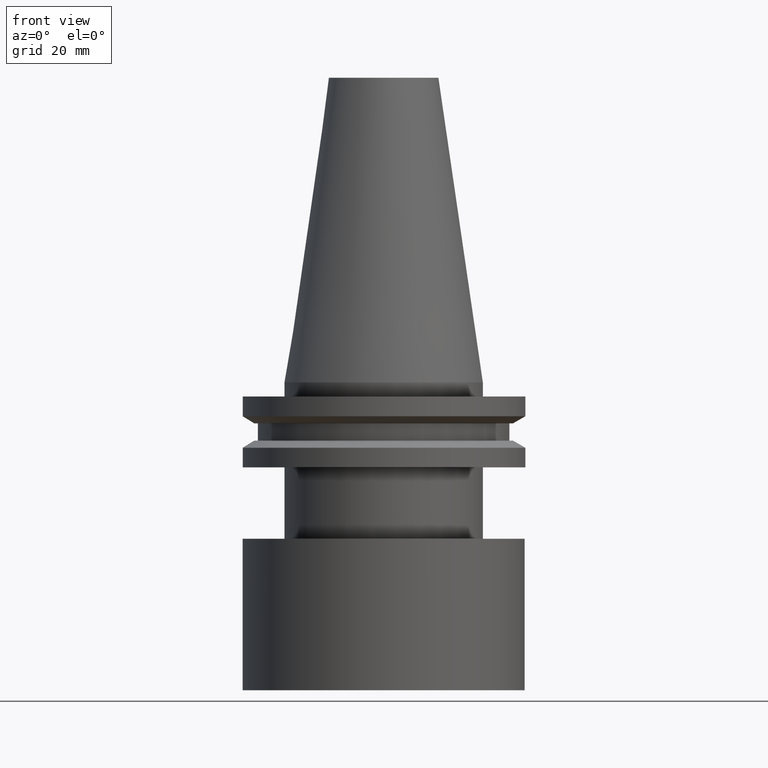
[diagram: clean part render]
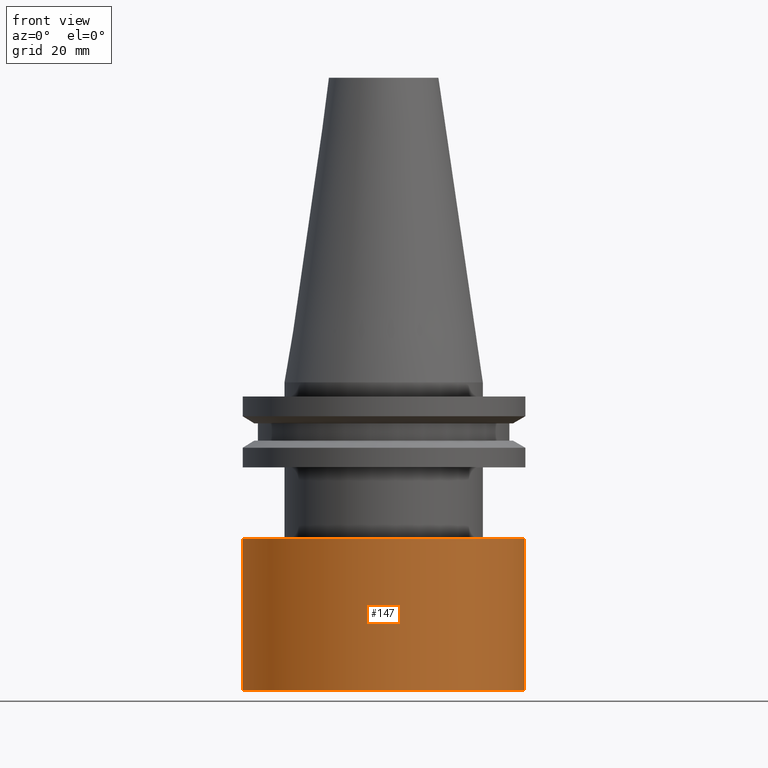
[diagram: same view with one face highlighted and labeled with its STEP entity id]
A machine part, front view. The second image highlights one B-rep face of the part: STEP entity #147.
In plain terms, the highlighted cylindrical surface (bore or boss wall) has radius 31.635 mm, axis along (-0, -0, -1).
Its self-contained STEP definition (entity closure, byte-faithful):
#8 = EDGE_LOOP ( 'NONE', ( #359 ) ) ;
#37 = CARTESIAN_POINT ( 'NONE',  ( 0.000000000000000000, -9.062386313690410430E-15, -68.99999999999998579 ) ) ;
#40 = CYLINDRICAL_SURFACE ( 'NONE', #270, 31.63500000000000867 ) ;
#41 = VERTEX_POINT ( 'NONE', #162 ) ;
#44 = EDGE_CURVE ( 'NONE', #46, #46, #107, .T. ) ;
#45 = FACE_OUTER_BOUND ( 'NONE', #8, .T. ) ;
#46 = VERTEX_POINT ( 'NONE', #385 ) ;
#73 = FACE_OUTER_BOUND ( 'NONE', #125, .T. ) ;
#76 = AXIS2_PLACEMENT_3D ( 'NONE', #37, #121, #259 ) ;
#107 = CIRCLE ( 'NONE', #76, 31.63500000000000867 ) ;
#110 = DIRECTION ( 'NONE',  ( 0.000000000000000000, 1.000000000000000000, -2.193423076942382468E-16 ) ) ;
#121 = DIRECTION ( 'NONE',  ( -0.000000000000000000, -2.669333229363891004E-16, -1.000000000000000000 ) ) ;
#125 = EDGE_LOOP ( 'NONE', ( #337 ) ) ;
#132 = DIRECTION ( 'NONE',  ( 0.000000000000000000, 1.000000000000000000, -4.386846153884764444E-16 ) ) ;
#147 = ADVANCED_FACE ( 'NONE', ( #45, #73 ), #40, .T. ) ;
#162 = CARTESIAN_POINT ( 'NONE',  ( 0.000000000000000000, 31.63500000000000512, -35.04999999999999716 ) ) ;
#198 = CIRCLE ( 'NONE', #297, 31.63500000000000512 ) ;
#240 = EDGE_CURVE ( 'NONE', #41, #41, #198, .T. ) ;
#259 = DIRECTION ( 'NONE',  ( 0.000000000000000000, 1.000000000000000000, -4.386846153884764444E-16 ) ) ;
#270 = AXIS2_PLACEMENT_3D ( 'NONE', #354, #324, #132 ) ;
#297 = AXIS2_PLACEMENT_3D ( 'NONE', #392, #387, #110 ) ;
#324 = DIRECTION ( 'NONE',  ( -0.000000000000000000, -2.669333229363891004E-16, -1.000000000000000000 ) ) ;
#337 = ORIENTED_EDGE ( 'NONE', *, *, #44, .F. ) ;
#354 = CARTESIAN_POINT ( 'NONE',  ( 0.000000000000000000, -9.062386313690412007E-15, -69.00000000000000000 ) ) ;
#359 = ORIENTED_EDGE ( 'NONE', *, *, #240, .T. ) ;
#385 = CARTESIAN_POINT ( 'NONE',  ( 0.000000000000000000, 31.63500000000000512, -69.00000000000000000 ) ) ;
#387 = DIRECTION ( 'NONE',  ( -0.000000000000000000, -2.669333229363891004E-16, -1.000000000000000000 ) ) ;
#392 = CARTESIAN_POINT ( 'NONE',  ( 0.000000000000000000, 1.540743955509788682E-30, -35.04999999999999005 ) ) ;